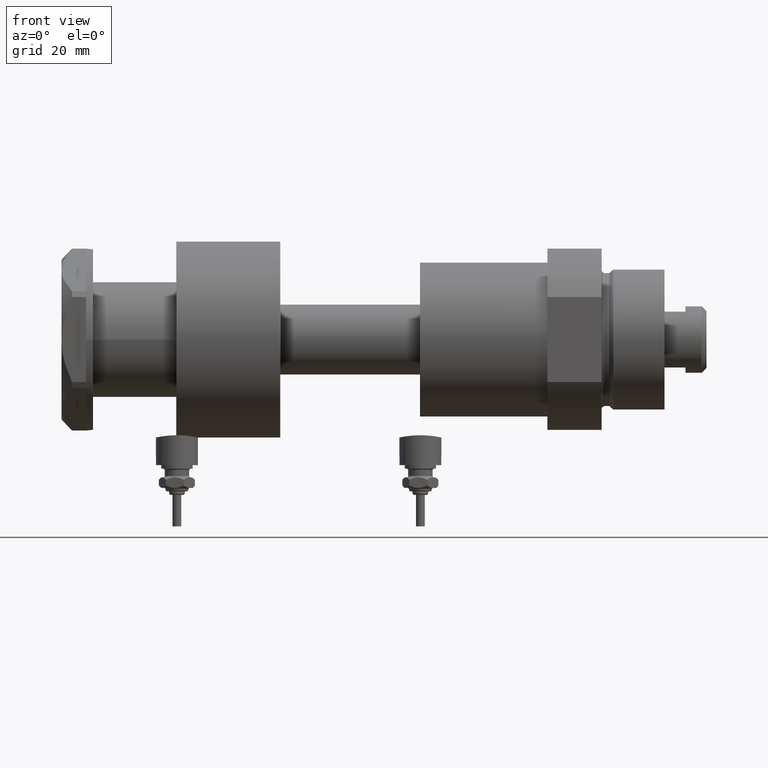
[diagram: clean part render]
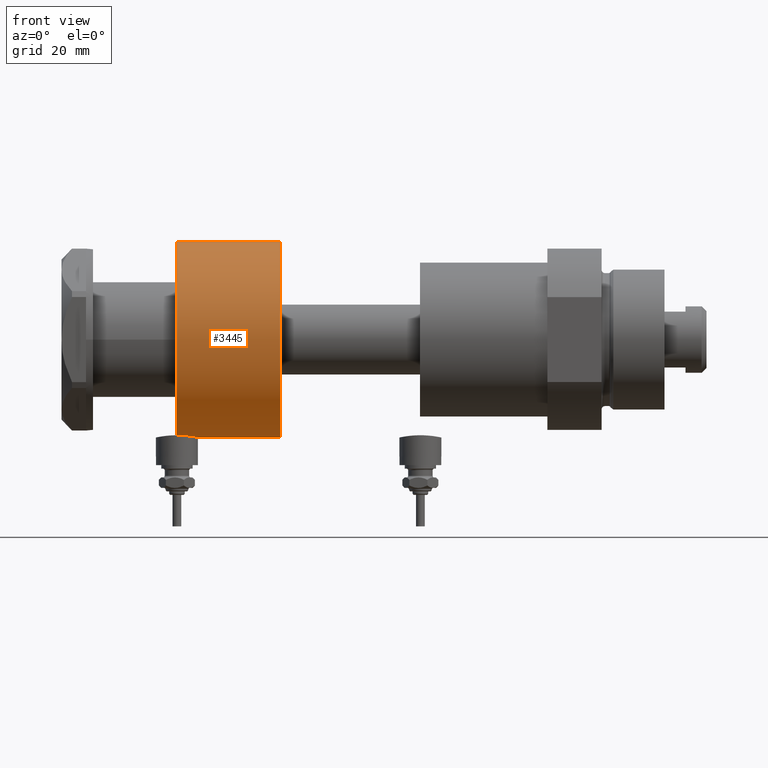
[diagram: same view with one face highlighted and labeled with its STEP entity id]
A machine part, front view. The second image highlights one B-rep face of the part: STEP entity #3445.
In plain terms, the highlighted cylindrical surface (partial cylindrical patch) has radius 28 mm, axis along (-1, -0, 0).
Its self-contained STEP definition (entity closure, byte-faithful):
#217 = VERTEX_POINT ( 'NONE', #2834 ) ;
#238 = CARTESIAN_POINT ( 'NONE',  ( -28.00000000000000000, 0.000000000000000000, 0.000000000000000000 ) ) ;
#475 = AXIS2_PLACEMENT_3D ( 'NONE', #2359, #3931, #1234 ) ;
#582 = DIRECTION ( 'NONE',  ( -1.000000000000000000, 0.000000000000000000, 0.000000000000000000 ) ) ;
#634 = CARTESIAN_POINT ( 'NONE',  ( 28.00000000000000000, 3.429011037612589276E-15, 29.75000000000000000 ) ) ;
#739 = CIRCLE ( 'NONE', #475, 28.00000000000000000 ) ;
#942 = CIRCLE ( 'NONE', #3774, 28.00000000000000000 ) ;
#1081 = CARTESIAN_POINT ( 'NONE',  ( 28.00000000000000000, 3.429011037612589276E-15, 0.000000000000000000 ) ) ;
#1192 = FACE_OUTER_BOUND ( 'NONE', #2886, .T. ) ;
#1234 = DIRECTION ( 'NONE',  ( 1.000000000000000000, 0.000000000000000000, 0.000000000000000000 ) ) ;
#1283 = ORIENTED_EDGE ( 'NONE', *, *, #3353, .T. ) ;
#1581 = DIRECTION ( 'NONE',  ( 0.000000000000000000, 0.000000000000000000, 1.000000000000000000 ) ) ;
#1653 = ORIENTED_EDGE ( 'NONE', *, *, #4537, .T. ) ;
#1783 = VERTEX_POINT ( 'NONE', #238 ) ;
#1806 = VERTEX_POINT ( 'NONE', #2239 ) ;
#1914 = VECTOR ( 'NONE', #3401, 1000.000000000000000 ) ;
#1934 = ORIENTED_EDGE ( 'NONE', *, *, #4508, .F. ) ;
#2084 = DIRECTION ( 'NONE',  ( -0.000000000000000000, -0.000000000000000000, -1.000000000000000000 ) ) ;
#2213 = LINE ( 'NONE', #634, #1914 ) ;
#2239 = CARTESIAN_POINT ( 'NONE',  ( -28.00000000000000000, 0.000000000000000000, 29.75000000000000000 ) ) ;
#2336 = CYLINDRICAL_SURFACE ( 'NONE', #4276, 28.00000000000000000 ) ;
#2355 = CARTESIAN_POINT ( 'NONE',  ( 0.000000000000000000, 0.000000000000000000, 29.75000000000000000 ) ) ;
#2359 = CARTESIAN_POINT ( 'NONE',  ( 0.000000000000000000, 0.000000000000000000, 0.000000000000000000 ) ) ;
#2645 = LINE ( 'NONE', #3749, #3951 ) ;
#2719 = DIRECTION ( 'NONE',  ( 1.000000000000000000, 0.000000000000000000, 0.000000000000000000 ) ) ;
#2834 = CARTESIAN_POINT ( 'NONE',  ( 28.00000000000000000, 3.429011037612589276E-15, 29.75000000000000000 ) ) ;
#2886 = EDGE_LOOP ( 'NONE', ( #1934, #3421, #1653, #1283 ) ) ;
#3353 = EDGE_CURVE ( 'NONE', #1783, #4084, #739, .T. ) ;
#3401 = DIRECTION ( 'NONE',  ( -0.000000000000000000, -0.000000000000000000, -1.000000000000000000 ) ) ;
#3421 = ORIENTED_EDGE ( 'NONE', *, *, #3780, .F. ) ;
#3445 = ADVANCED_FACE ( 'NONE', ( #1192 ), #2336, .T. ) ;
#3749 = CARTESIAN_POINT ( 'NONE',  ( -28.00000000000000000, 0.000000000000000000, 29.75000000000000000 ) ) ;
#3774 = AXIS2_PLACEMENT_3D ( 'NONE', #2355, #1581, #2719 ) ;
#3780 = EDGE_CURVE ( 'NONE', #1806, #217, #942, .T. ) ;
#3904 = CARTESIAN_POINT ( 'NONE',  ( 0.000000000000000000, 0.000000000000000000, 29.75000000000000000 ) ) ;
#3931 = DIRECTION ( 'NONE',  ( 0.000000000000000000, 0.000000000000000000, 1.000000000000000000 ) ) ;
#3951 = VECTOR ( 'NONE', #4619, 1000.000000000000000 ) ;
#4084 = VERTEX_POINT ( 'NONE', #1081 ) ;
#4276 = AXIS2_PLACEMENT_3D ( 'NONE', #3904, #2084, #582 ) ;
#4508 = EDGE_CURVE ( 'NONE', #217, #4084, #2213, .T. ) ;
#4537 = EDGE_CURVE ( 'NONE', #1806, #1783, #2645, .T. ) ;
#4619 = DIRECTION ( 'NONE',  ( -0.000000000000000000, -0.000000000000000000, -1.000000000000000000 ) ) ;